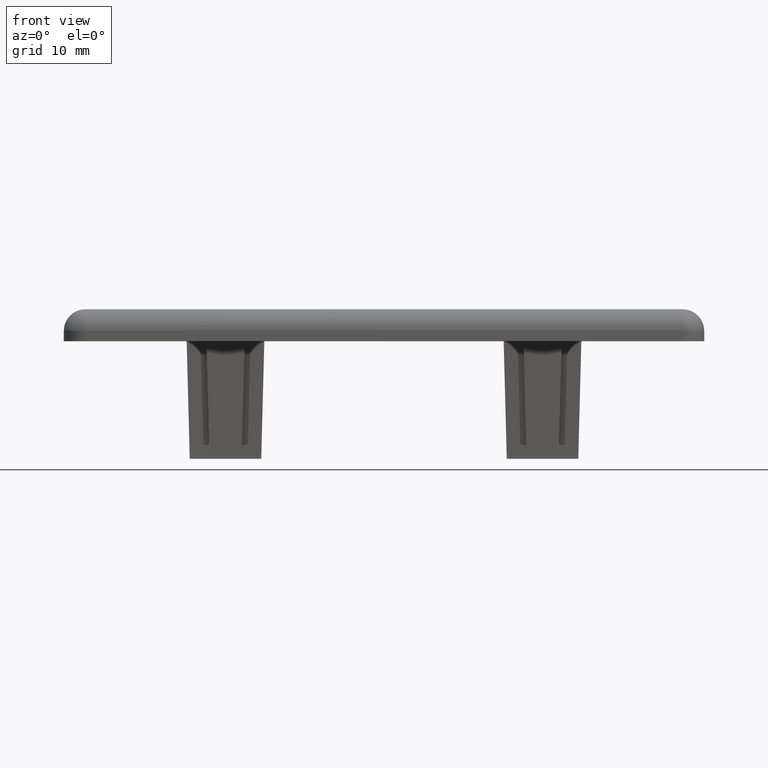
[diagram: clean part render]
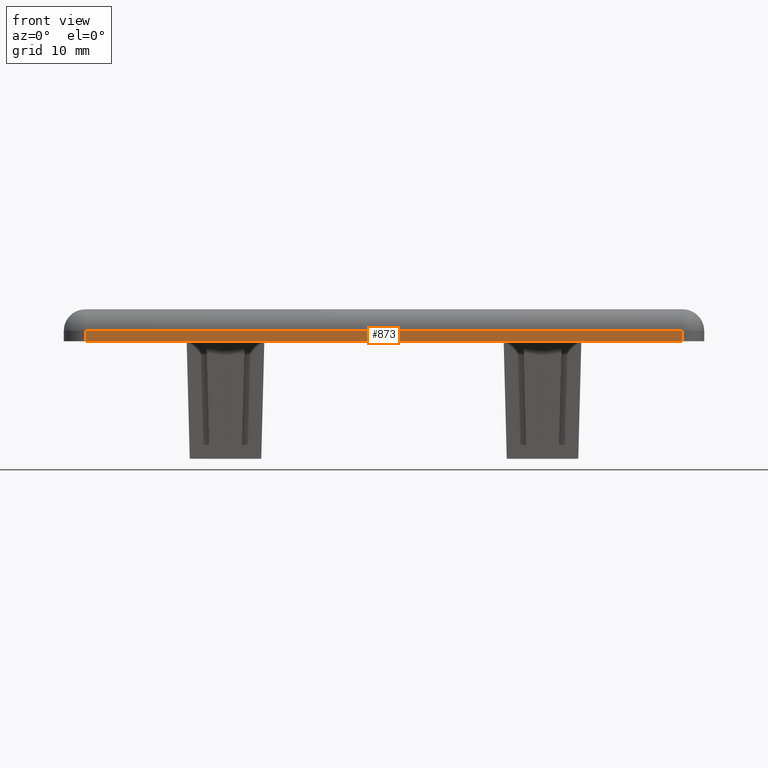
[diagram: same view with one face highlighted and labeled with its STEP entity id]
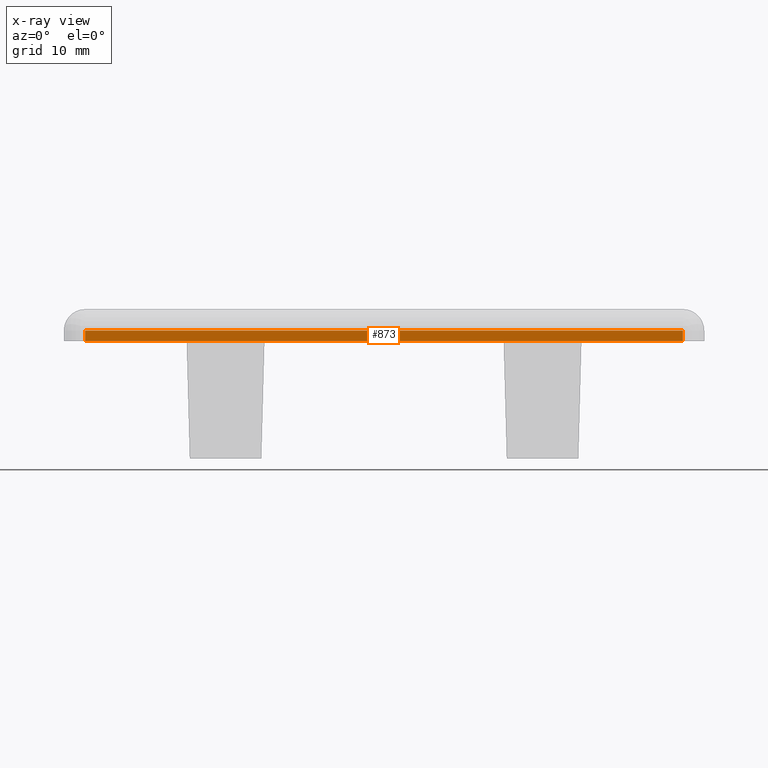
[diagram: x-ray of the same camera — body ghosted, the highlighted face saturated]
A machine part, front view. The second image highlights one B-rep face of the part: STEP entity #873.
The next image is the same camera in x-ray: the body ghosted, the highlighted face saturated — about 0% of this face is hidden behind the body in this view.
In plain terms, the highlighted planar face has unit normal (0, -1, 0).
Its self-contained STEP definition (entity closure, byte-faithful):
#91=FACE_OUTER_BOUND('',#143,.T.);
#143=EDGE_LOOP('',(#775,#776,#777,#778));
#232=LINE('',#1361,#336);
#240=LINE('',#1398,#344);
#243=LINE('',#1410,#347);
#246=LINE('',#1414,#350);
#336=VECTOR('',#1099,56.);
#344=VECTOR('',#1141,1.);
#347=VECTOR('',#1156,1.);
#350=VECTOR('',#1161,56.);
#414=VERTEX_POINT('',#1358);
#415=VERTEX_POINT('',#1360);
#425=VERTEX_POINT('',#1390);
#430=VERTEX_POINT('',#1406);
#518=EDGE_CURVE('',#414,#415,#232,.T.);
#537=EDGE_CURVE('',#425,#414,#240,.T.);
#543=EDGE_CURVE('',#415,#430,#243,.T.);
#546=EDGE_CURVE('',#430,#425,#246,.T.);
#775=ORIENTED_EDGE('',*,*,#537,.F.);
#776=ORIENTED_EDGE('',*,*,#546,.F.);
#777=ORIENTED_EDGE('',*,*,#543,.F.);
#778=ORIENTED_EDGE('',*,*,#518,.F.);
#824=PLANE('',#940);
#873=ADVANCED_FACE('',(#91),#824,.T.);
#940=AXIS2_PLACEMENT_3D('',#1422,#1172,#1173);
#1099=DIRECTION('',(-1.,-1.48029736616688E-16,0.));
#1141=DIRECTION('',(0.,0.,-1.));
#1156=DIRECTION('',(0.,0.,1.));
#1161=DIRECTION('',(1.,1.48029736616688E-16,0.));
#1172=DIRECTION('center_axis',(1.48029736616688E-16,-1.,0.));
#1173=DIRECTION('ref_axis',(1.,1.77635683940025E-16,0.));
#1358=CARTESIAN_POINT('',(28.,-15.,0.));
#1360=CARTESIAN_POINT('',(-28.,-15.,0.));
#1361=CARTESIAN_POINT('',(30.,-15.,0.));
#1390=CARTESIAN_POINT('',(28.,-15.,1.));
#1398=CARTESIAN_POINT('',(28.,-15.,0.));
#1406=CARTESIAN_POINT('',(-28.,-15.,1.));
#1410=CARTESIAN_POINT('',(-28.,-15.,0.));
#1414=CARTESIAN_POINT('',(-15.,-15.,1.));
#1422=CARTESIAN_POINT('Origin',(-30.,-15.,0.));